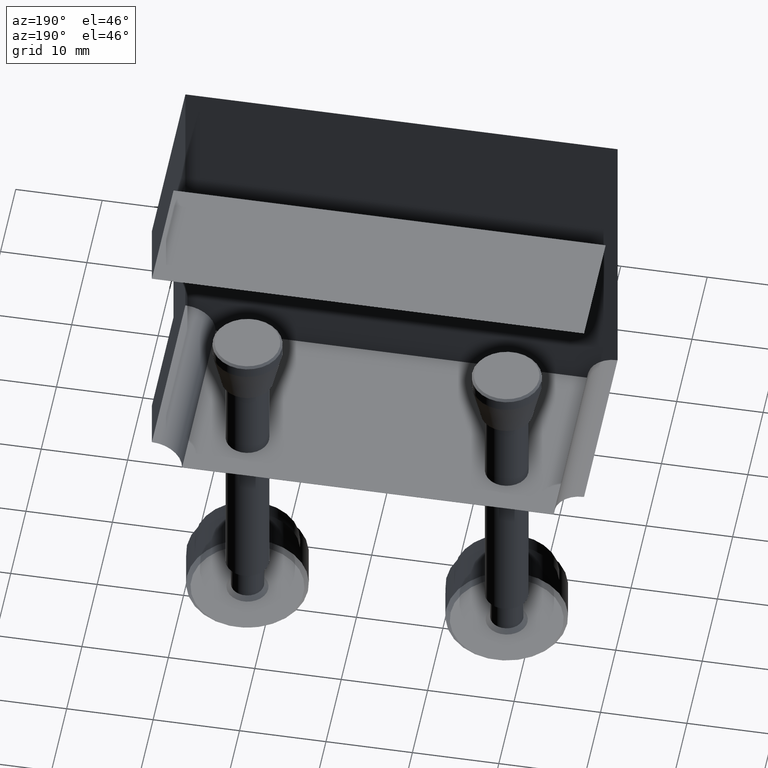
[diagram: clean part render]
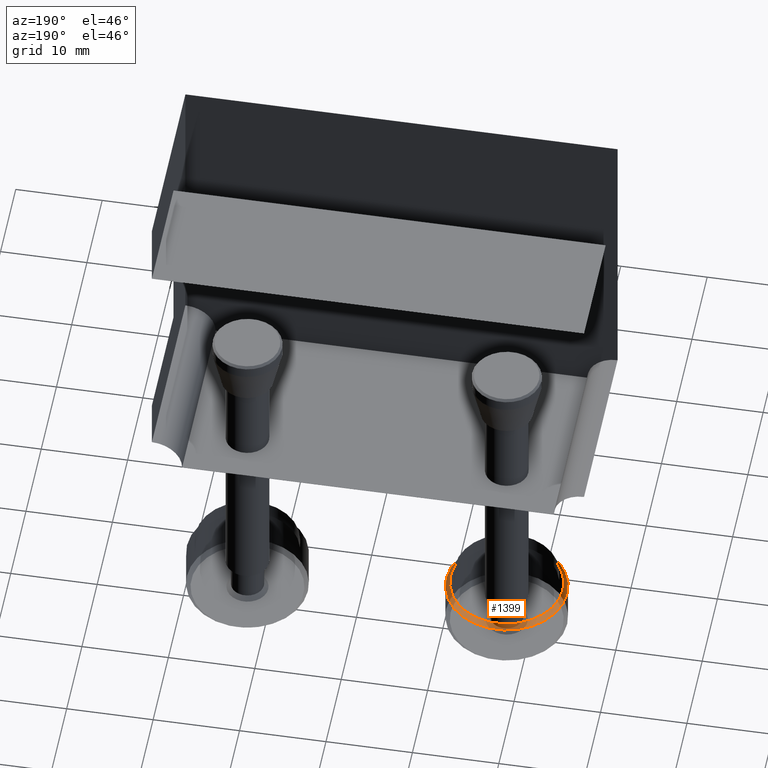
[diagram: same view with one face highlighted and labeled with its STEP entity id]
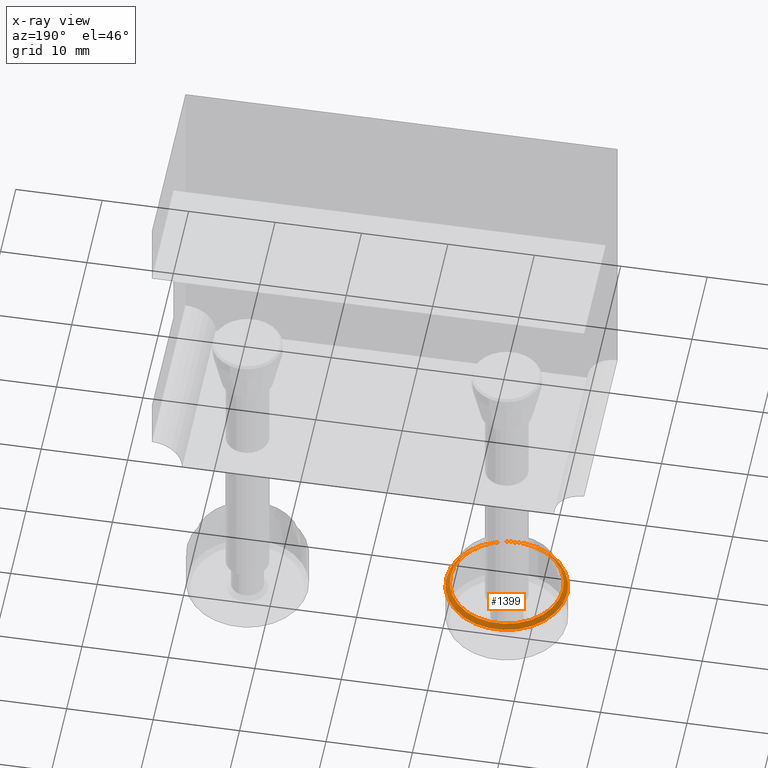
[diagram: x-ray of the same camera — body ghosted, the highlighted face saturated]
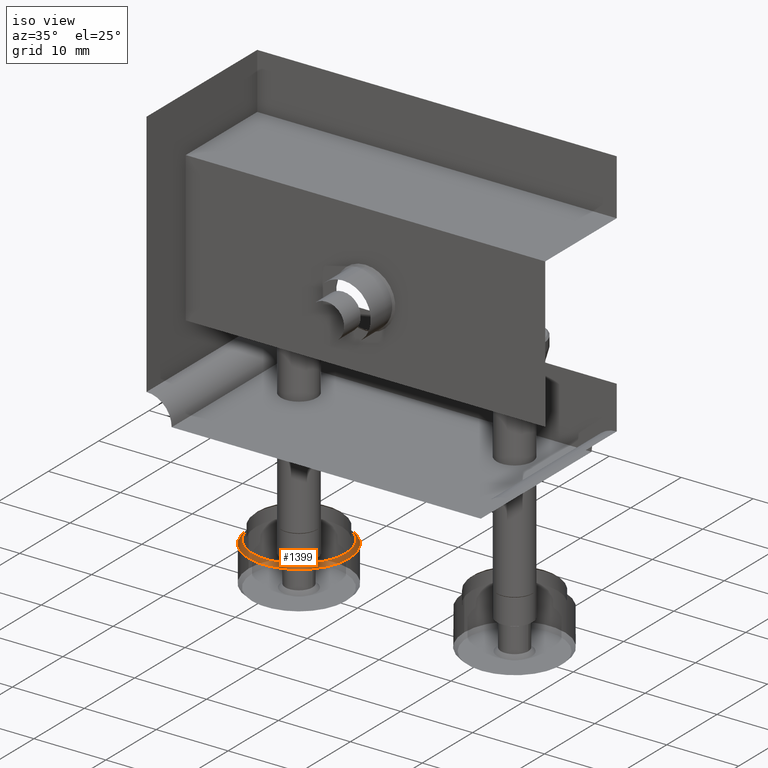
[diagram: same view with one face highlighted and labeled with its STEP entity id]
A machine part, auxiliary view. The second image highlights one B-rep face of the part: STEP entity #1399.
The next image is the same camera in x-ray: the body ghosted, the highlighted face saturated — about 1% of this face is hidden behind the body in this view.
A second angle (iso view) of the same face is appended — the face is thin or edge-on in the first view.
In plain terms, the highlighted conical surface has half-angle 45 deg.
Its self-contained STEP definition (entity closure, byte-faithful):
#22 = ORIENTED_EDGE ( 'NONE', *, *, #1312, .T. ) ;
#87 = AXIS2_PLACEMENT_3D ( 'NONE', #1529, #1294, #259 ) ;
#116 = FACE_OUTER_BOUND ( 'NONE', #840, .T. ) ;
#206 = DIRECTION ( 'NONE',  ( -1.489774117668496149E-16, 9.226332959743110247E-17, -1.000000000000000000 ) ) ;
#254 = CONICAL_SURFACE ( 'NONE', #676, 7.000000000000000888, 0.7853981633974500554 ) ;
#259 = DIRECTION ( 'NONE',  ( -1.000000000000000000, 0.000000000000000000, 2.668805347656627171E-16 ) ) ;
#260 = EDGE_LOOP ( 'NONE', ( #305 ) ) ;
#305 = ORIENTED_EDGE ( 'NONE', *, *, #1405, .F. ) ;
#428 = VERTEX_POINT ( 'NONE', #1394 ) ;
#438 = DIRECTION ( 'NONE',  ( -1.000000000000000000, 0.000000000000000000, 2.478176394252581141E-16 ) ) ;
#547 = CARTESIAN_POINT ( 'NONE',  ( -4.136236490144619360, 28.54850150571979484, -9.352313630717887349 ) ) ;
#592 = DIRECTION ( 'NONE',  ( -1.000000000000000000, 0.000000000000000000, 2.478176394252581141E-16 ) ) ;
#676 = AXIS2_PLACEMENT_3D ( 'NONE', #1435, #206, #592 ) ;
#680 = VERTEX_POINT ( 'NONE', #547 ) ;
#724 = CIRCLE ( 'NONE', #1156, 7.000000000000000888 ) ;
#840 = EDGE_LOOP ( 'NONE', ( #22 ) ) ;
#879 = CIRCLE ( 'NONE', #87, 6.499999999999997335 ) ;
#936 = DIRECTION ( 'NONE',  ( -1.759239726411918598E-16, 1.302529250467198802E-16, -1.000000000000000000 ) ) ;
#1065 = FACE_BOUND ( 'NONE', #260, .T. ) ;
#1156 = AXIS2_PLACEMENT_3D ( 'NONE', #1515, #936, #438 ) ;
#1294 = DIRECTION ( 'NONE',  ( -1.489774117668496149E-16, 9.226332959743110247E-17, -1.000000000000000000 ) ) ;
#1312 = EDGE_CURVE ( 'NONE', #680, #680, #724, .T. ) ;
#1394 = CARTESIAN_POINT ( 'NONE',  ( -3.636236490144614919, 28.54850150571979484, -8.852313630717883797 ) ) ;
#1399 = ADVANCED_FACE ( 'NONE', ( #1065, #116 ), #254, .F. ) ;
#1405 = EDGE_CURVE ( 'NONE', #428, #428, #879, .T. ) ;
#1435 = CARTESIAN_POINT ( 'NONE',  ( 2.863763509855382416, 28.54850150571979484, -9.352313630717889126 ) ) ;
#1515 = CARTESIAN_POINT ( 'NONE',  ( 2.863763509855381972, 28.54850150571979484, -9.352313630717889126 ) ) ;
#1529 = CARTESIAN_POINT ( 'NONE',  ( 2.863763509855382416, 28.54850150571979484, -8.852313630717885573 ) ) ;